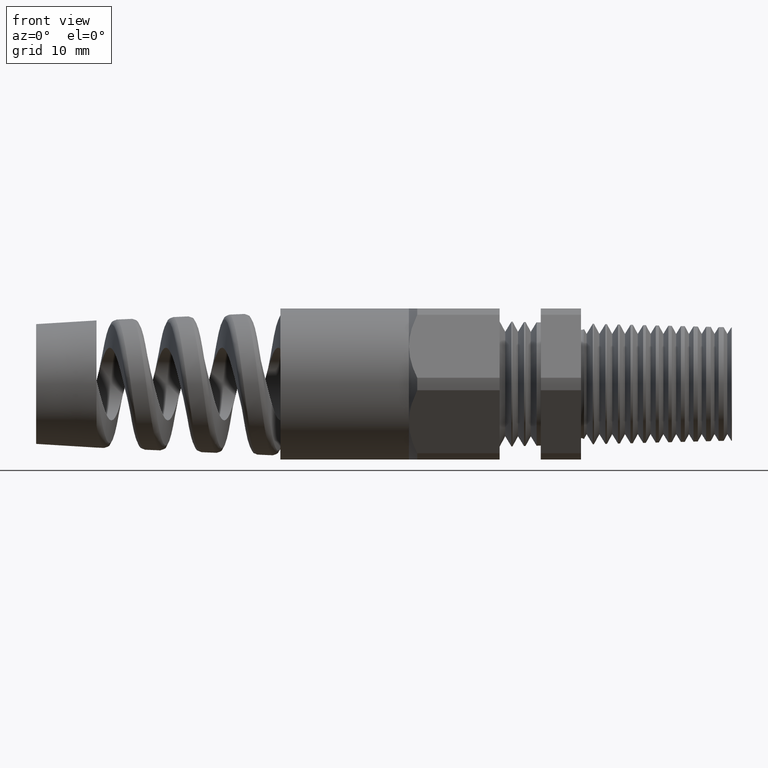
[diagram: clean part render]
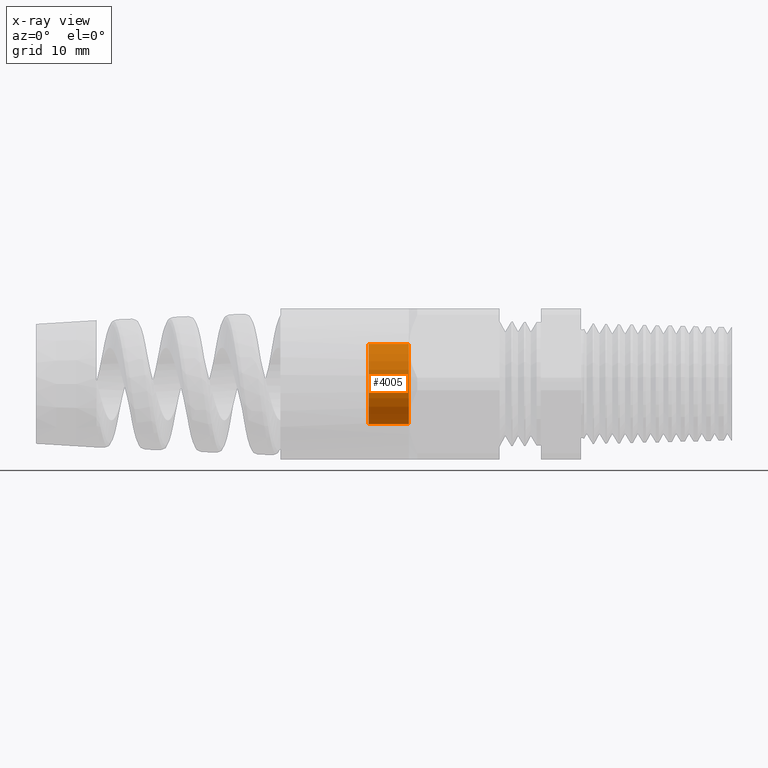
[diagram: x-ray — body ghosted, one internal face saturated and labeled with its STEP entity id]
A machine part, front view, then the same camera in x-ray: the body is ghosted and one INTERNAL B-rep face — a face not visible from any outside direction — is saturated and labeled: STEP entity #4005.
In plain terms, the highlighted cylindrical surface (partial cylindrical patch) has radius 3.9769 mm, axis along (1, 0, 0).
Its self-contained STEP definition (entity closure, byte-faithful):
#2759 = DIRECTION ( 'NONE',  ( 1.000000000000000000, 0.0000000000000000000, 0.0000000000000000000 ) ) ;
#2760 = VECTOR ( 'NONE', #2759, 39.37007874015748100 ) ;
#2767 = DIRECTION ( 'NONE',  ( 0.0000000000000000000, 0.0000000000000000000, -1.000000000000000000 ) ) ;
#2768 = AXIS2_PLACEMENT_3D ( 'NONE', #2838, #2835, #2767 ) ;
#2771 = CARTESIAN_POINT ( 'NONE',  ( -1.485009101506120400, 1.917420905937121000E-017, 0.1565692987783991500 ) ) ;
#2772 = LINE ( 'NONE', #2771, #2760 ) ;
#2776 = CARTESIAN_POINT ( 'NONE',  ( -0.9825196850393698200, 1.917420905937121000E-017, 0.1565692987783991500 ) ) ;
#2800 = CARTESIAN_POINT ( 'NONE',  ( -1.139999999999999900, 0.0000000000000000000, 0.0000000000000000000 ) ) ;
#2801 = CIRCLE ( 'NONE', #2813, 0.1565692987783991500 ) ;
#2802 = CARTESIAN_POINT ( 'NONE',  ( -1.139999999999999900, 0.0000000000000000000, -0.1565692987783991500 ) ) ;
#2811 = DIRECTION ( 'NONE',  ( 0.0000000000000000000, 0.0000000000000000000, -1.000000000000000000 ) ) ;
#2812 = DIRECTION ( 'NONE',  ( -1.000000000000000000, 0.0000000000000000000, 0.0000000000000000000 ) ) ;
#2813 = AXIS2_PLACEMENT_3D ( 'NONE', #2800, #2812, #2811 ) ;
#2834 = CYLINDRICAL_SURFACE ( 'NONE', #2768, 0.1565692987783991500 ) ;
#2835 = DIRECTION ( 'NONE',  ( 1.000000000000000000, 0.0000000000000000000, 0.0000000000000000000 ) ) ;
#2837 = FACE_OUTER_BOUND ( 'NONE', #4004, .T. ) ;
#2838 = CARTESIAN_POINT ( 'NONE',  ( -1.485009101506120400, 0.0000000000000000000, 0.0000000000000000000 ) ) ;
#2841 = DIRECTION ( 'NONE',  ( 1.000000000000000000, 0.0000000000000000000, 0.0000000000000000000 ) ) ;
#2842 = VECTOR ( 'NONE', #2841, 39.37007874015748100 ) ;
#2843 = CIRCLE ( 'NONE', #2884, 0.1565692987783991500 ) ;
#2853 = CARTESIAN_POINT ( 'NONE',  ( -1.485009101506120400, 0.0000000000000000000, -0.1565692987783991500 ) ) ;
#2854 = LINE ( 'NONE', #2853, #2842 ) ;
#2865 = CARTESIAN_POINT ( 'NONE',  ( -0.9825196850393698200, 0.0000000000000000000, -0.1565692987783991500 ) ) ;
#2866 = DIRECTION ( 'NONE',  ( 0.0000000000000000000, 0.0000000000000000000, 1.000000000000000000 ) ) ;
#2867 = DIRECTION ( 'NONE',  ( 1.000000000000000000, 0.0000000000000000000, 0.0000000000000000000 ) ) ;
#2868 = CARTESIAN_POINT ( 'NONE',  ( -0.9825196850393698200, 0.0000000000000000000, 0.0000000000000000000 ) ) ;
#2880 = CARTESIAN_POINT ( 'NONE',  ( -1.139999999999999900, 1.917420905937121000E-017, 0.1565692987783991500 ) ) ;
#2884 = AXIS2_PLACEMENT_3D ( 'NONE', #2868, #2867, #2866 ) ;
#3993 = ORIENTED_EDGE ( 'NONE', *, *, #3994, .T. ) ;
#3994 = EDGE_CURVE ( 'NONE', #4014, #4015, #2772, .T. ) ;
#3995 = ORIENTED_EDGE ( 'NONE', *, *, #3996, .T. ) ;
#3996 = EDGE_CURVE ( 'NONE', #4015, #3997, #2843, .T. ) ;
#3997 = VERTEX_POINT ( 'NONE', #2865 ) ;
#3999 = ORIENTED_EDGE ( 'NONE', *, *, #4010, .F. ) ;
#4000 = EDGE_CURVE ( 'NONE', #4001, #4014, #2801, .T. ) ;
#4001 = VERTEX_POINT ( 'NONE', #2802 ) ;
#4004 = EDGE_LOOP ( 'NONE', ( #4031, #3993, #3995, #3999 ) ) ;
#4005 = ADVANCED_FACE ( 'NONE', ( #2837 ), #2834, .F. ) ;
#4010 = EDGE_CURVE ( 'NONE', #4001, #3997, #2854, .T. ) ;
#4014 = VERTEX_POINT ( 'NONE', #2880 ) ;
#4015 = VERTEX_POINT ( 'NONE', #2776 ) ;
#4031 = ORIENTED_EDGE ( 'NONE', *, *, #4000, .T. ) ;